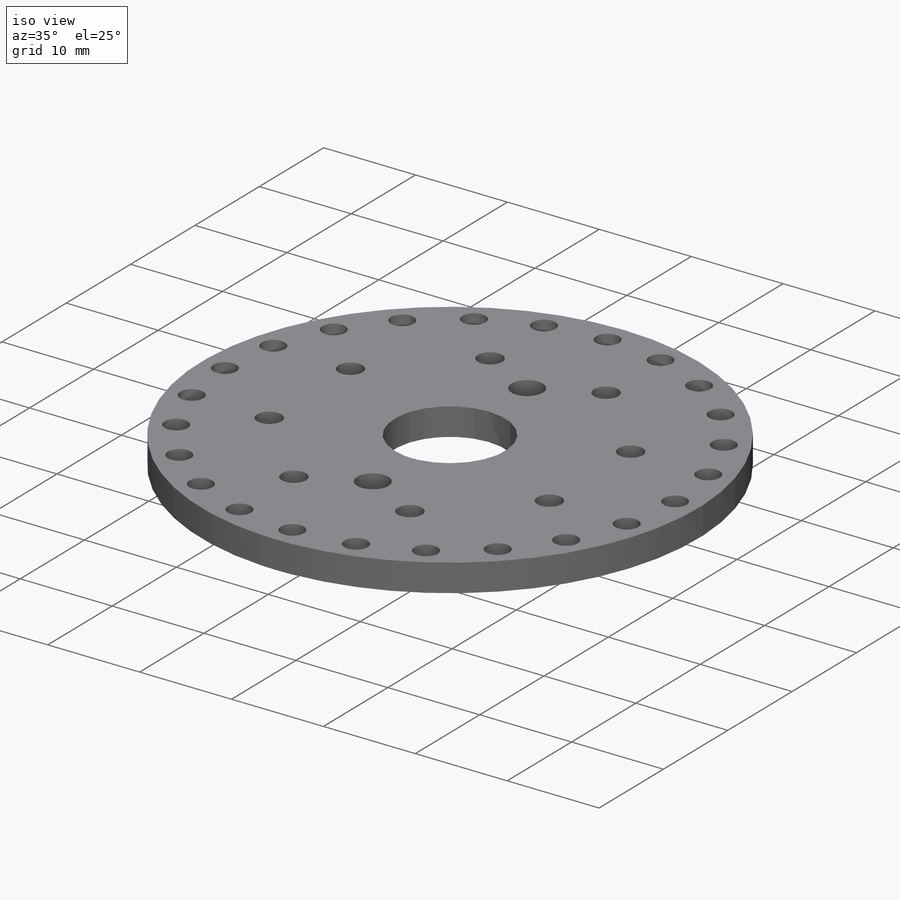
[diagram: iso view]
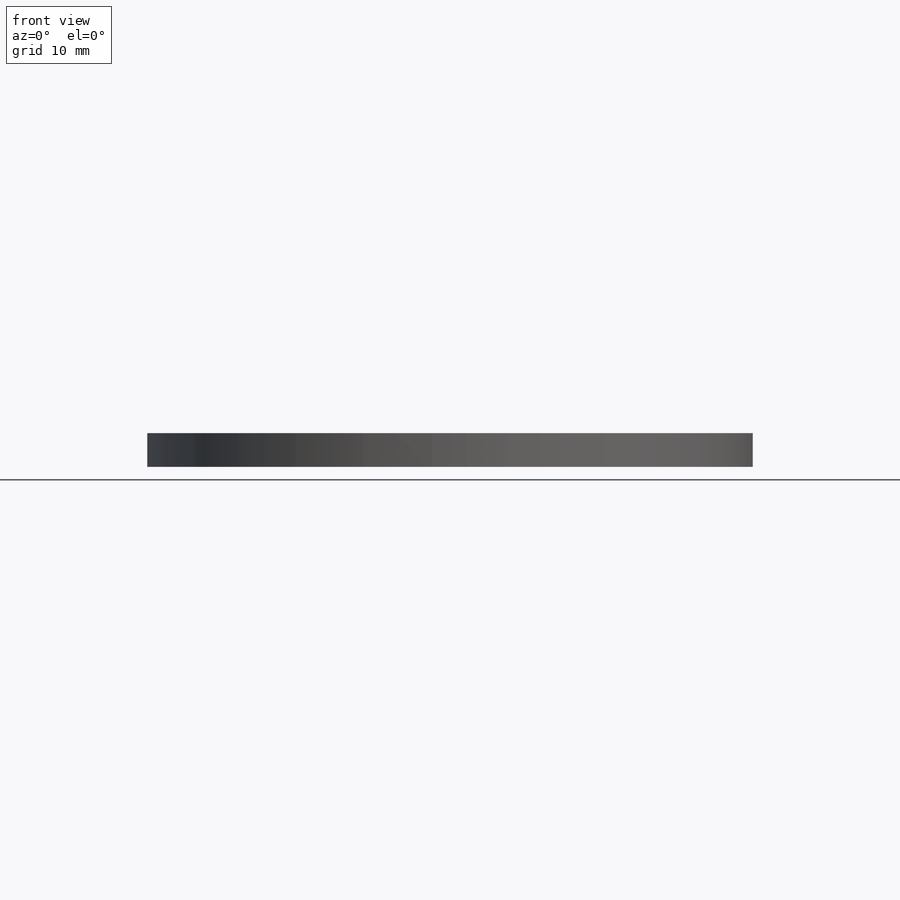
[diagram: front view]
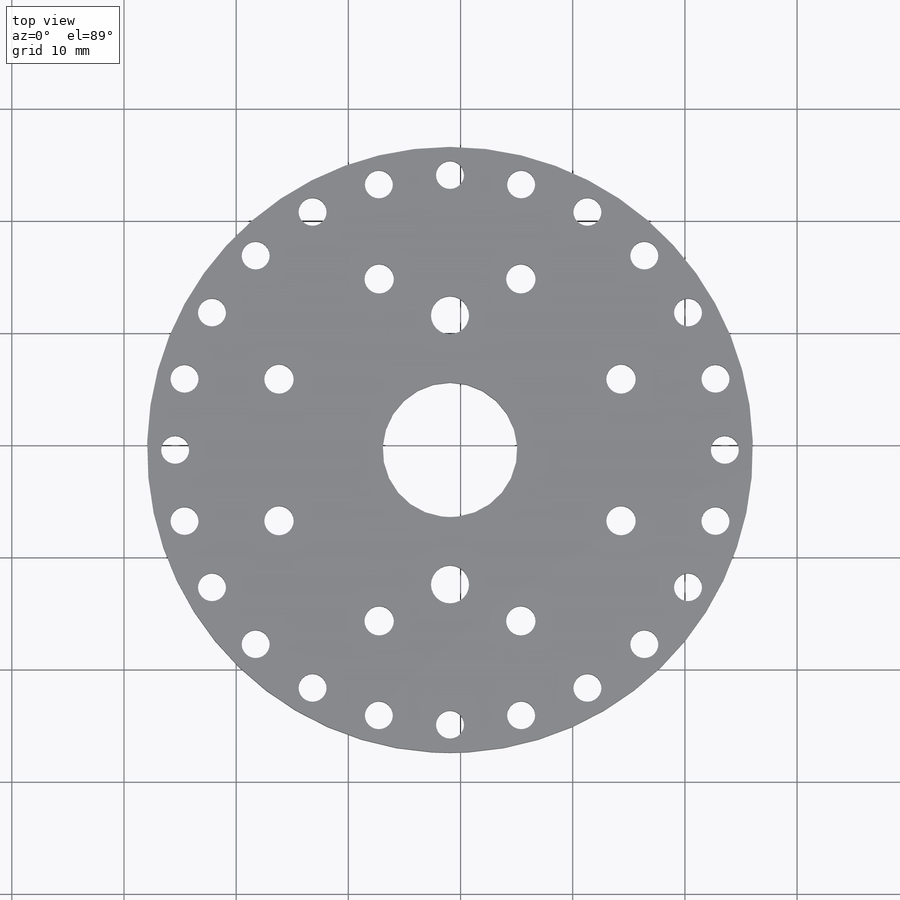
[diagram: top view]
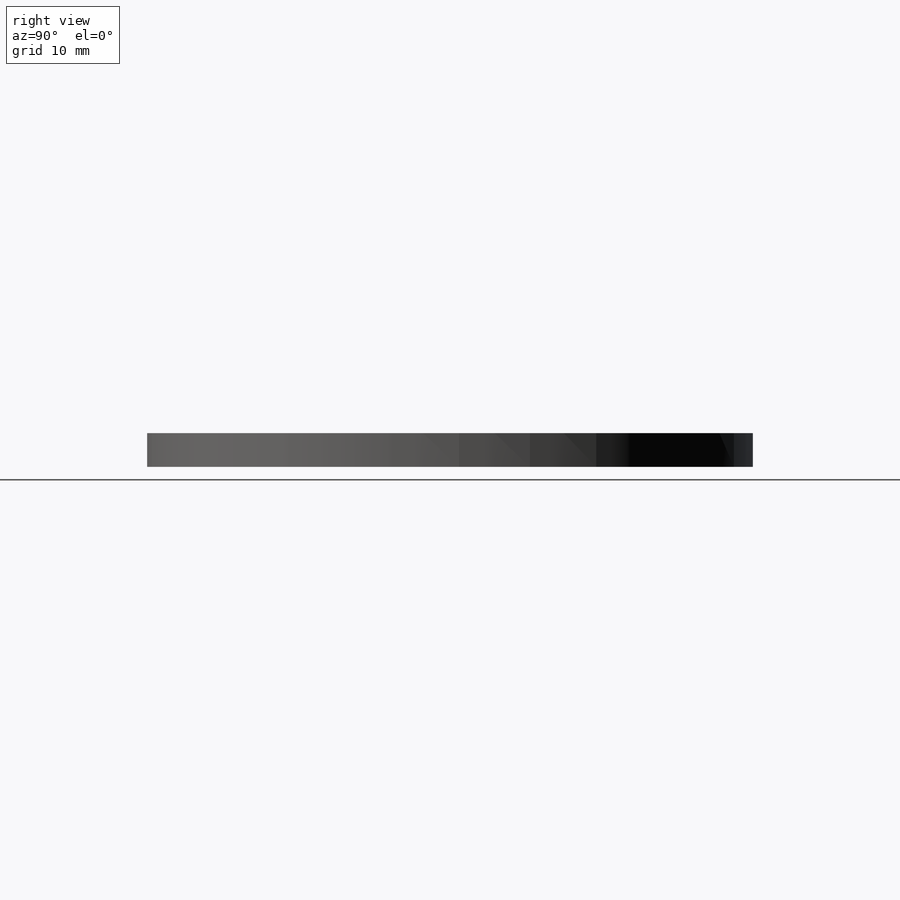
[diagram: right view]
SOLIDWORKS PART (.sldprt)
format: sldprt  version: not decoded by parser v0  size: 930,304 bytes
history: native  units: mm
features: sketch x5, cut_extrude x3, extrude x2, material x1 (+11 scaffold rows collapsed)
feature tree (22):
  scaffold x11  (default folders/planes/origin — collapsed)
  material  "Plain Carbon Steel"
  sketch  "Sketch5"
  sketch  "Sketch6"  dims[D1=8.0mm]
  sketch  "Sketch7"  dims[D2=3.0mm D1=12.0mm]
  sketch  "Sketch8"  dims[D1=54.0mm]
  sketch  "Sketch9"  dims[D1=2.0mm D2=2.0mm D3=24.0]
  extrude  "Boss-Extrude1"  Depth=2.5mm
  extrude  "Boss-Extrude2"  [1 undecoded]
  cut_extrude  "Cut-Extrude1"  [1 undecoded]
  cut_extrude  "Cut-Extrude2"  Depth=2.5mm
  cut_extrude  "Cut-Extrude3"  Depth=2.5mm
decode coverage: 7 of 10 modeling features carry decoded parameters
note: 2 parameter values undecoded
note: suppression state not decoded; provenance and decode notes live in map.json
